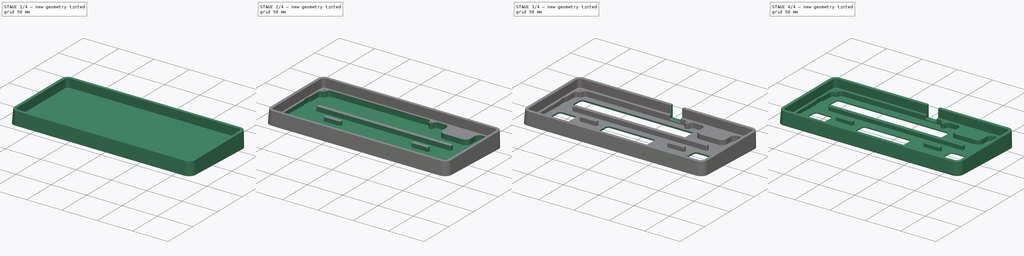
[diagram: build sequence overview — one tinted view per stage of 4, left to right]
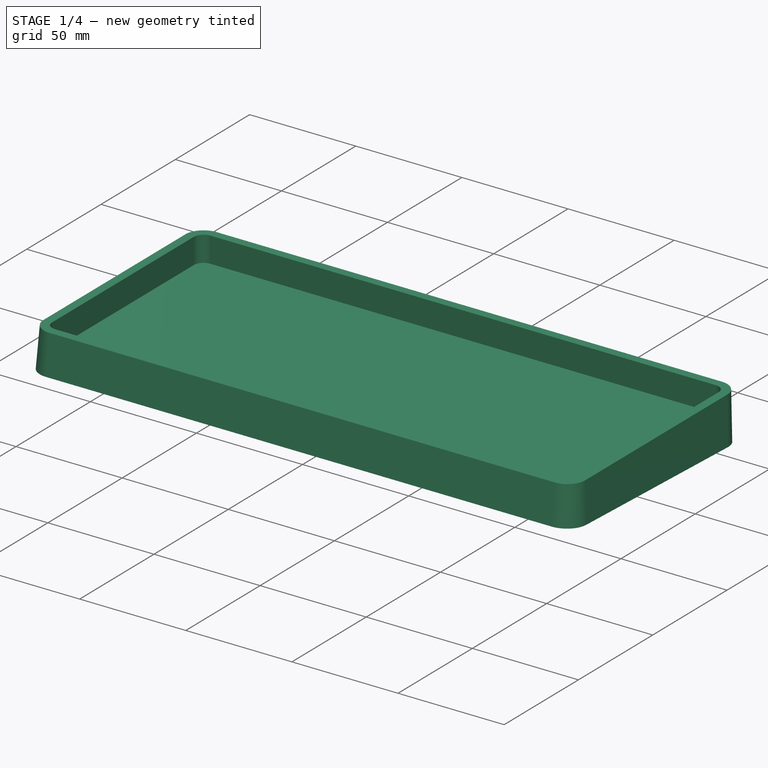
[diagram: stage 1 of 4 — iso view after this stage's code; geometry added in this stage tinted green]
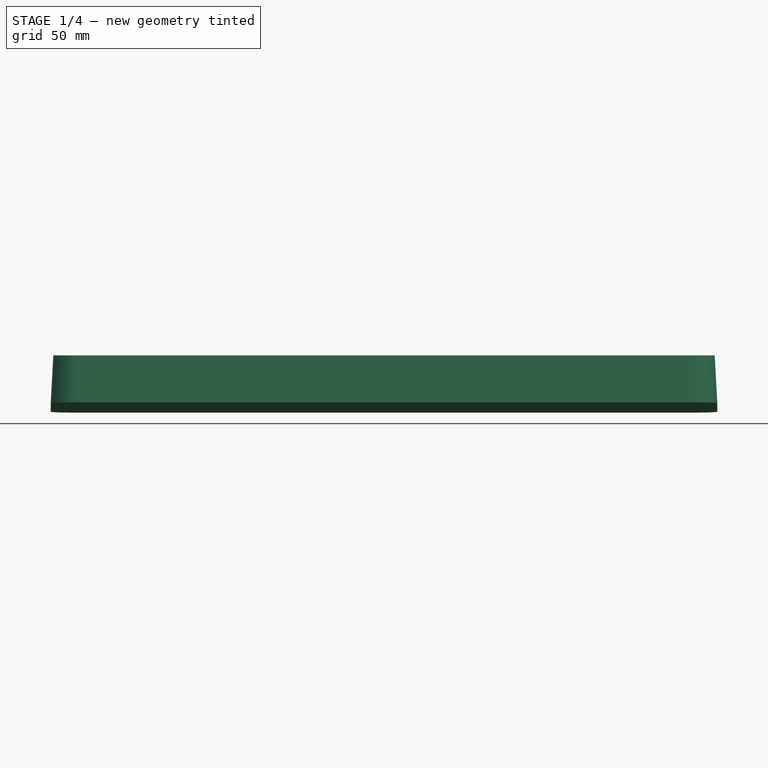
[diagram: stage 1 of 4 — front view after this stage's code; geometry added in this stage tinted green]
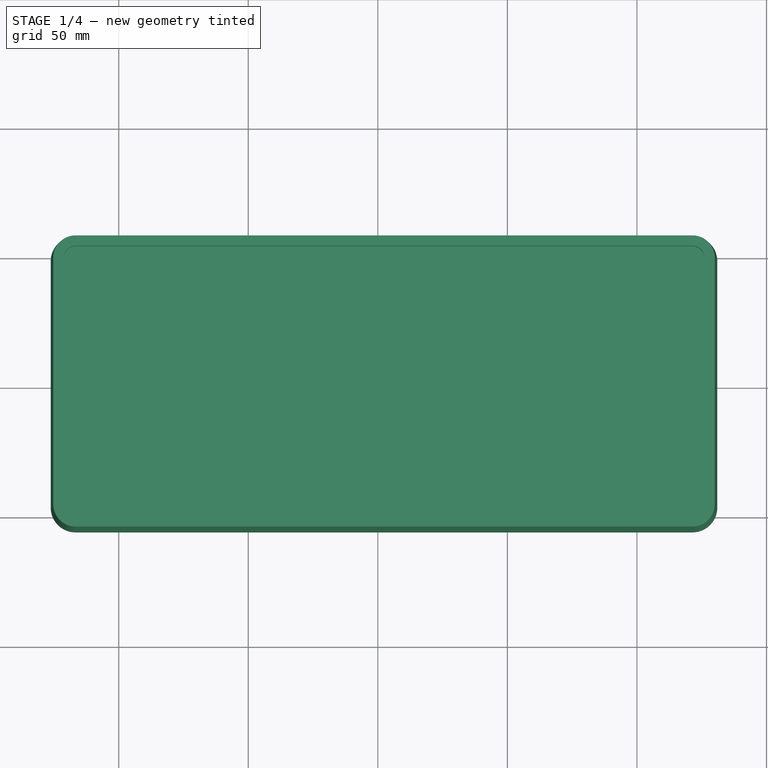
[diagram: stage 1 of 4 — top view after this stage's code; geometry added in this stage tinted green]
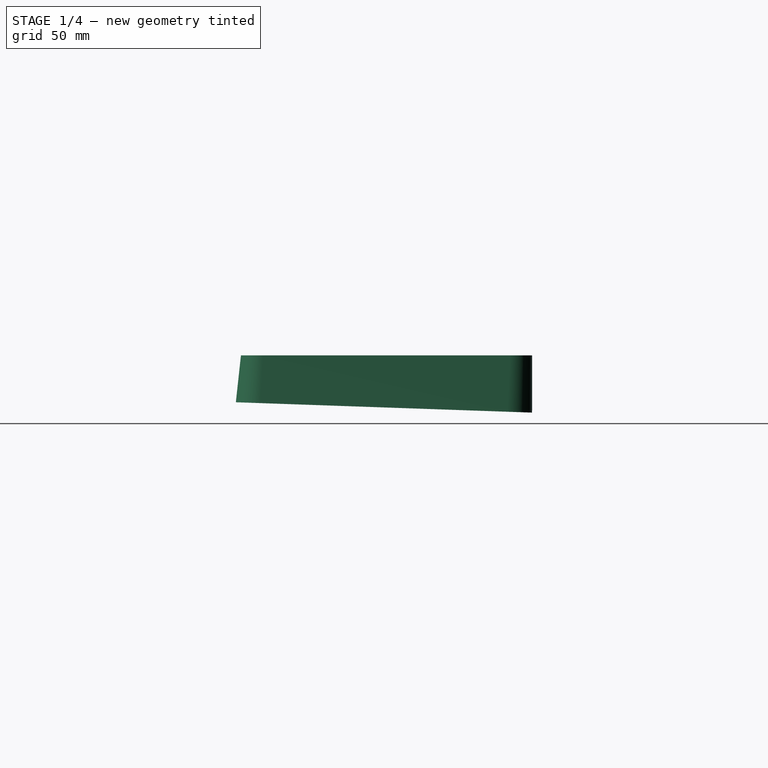
[diagram: stage 1 of 4 — right view after this stage's code; geometry added in this stage tinted green]
FCSTD DOCUMENT  (FreeCAD 0.20R)
Label: case
License: All rights reserved
LicenseURL: http://en.wikipedia.org/wiki/All_rights_reserved
objects: Sketcher::SketchObject×7, PartDesign::Pocket×4, PartDesign::Fillet×3, PartDesign::AdditiveLoft×1, PartDesign::Hole×1, PartDesign::Chamfer×1, PartDesign::Body×1
note: 28 computed .brp shape members not serialized (recipe doc carries the construction recipe); baked Part::Feature solids carry a one-line shape summary decoded from their .brp

FEATURE [Sketcher::SketchObject] Sketch002
  FullyConstrained = false
  MapMode = 5
  Placement = pos=(0,0.0685385,1.96269) rot=(-1,0,0;0.034907rad)
  sketch-geometry (40):
    g0: ArcOfCircle CenterX=57.3812 CenterY=-26.065 CenterZ=0 NormalX=0 NormalY=0 NormalZ=1 AngleXU=0 Radius=4 StartAngle=1.5708 EndAngle=3.14159
    g1: LineSegment StartX=57.3812 StartY=-22.065 StartZ=0 EndX=79.66 EndY=-22.065 EndZ=0
    g2: LineSegment StartX=53.3812 StartY=-26.065 StartZ=0 EndX=53.3812 EndY=-32.8156 EndZ=0
    g3: ArcOfCircle CenterX=57.3812 CenterY=-32.8156 CenterZ=0 NormalX=0 NormalY=0 NormalZ=1 AngleXU=0 Radius=4 StartAngle=3.14159 EndAngle=4.71239
    g4: LineSegment StartX=57.3812 StartY=-36.8156 StartZ=0 EndX=109.016 EndY=-36.8156 EndZ=0
    g5: ArcOfCircle CenterX=109.016 CenterY=-32.8156 CenterZ=0 NormalX=0 NormalY=0 NormalZ=1 AngleXU=0 Radius=4 StartAngle=4.71239 EndAngle=6.28318
    g6: LineSegment StartX=113.016 StartY=-32.8156 StartZ=0 EndX=113.016 EndY=-7.015 EndZ=0
    g7: ArcOfCircle CenterX=109.016 CenterY=-7.015 CenterZ=0 NormalX=0 NormalY=0 NormalZ=1 AngleXU=0 Radius=4 StartAngle=6.28318 EndAngle=7.85398
    g8: LineSegment StartX=109.016 StartY=-3.015 StartZ=0 EndX=87.66 EndY=-3.015 EndZ=0
    g9: ArcOfCircle CenterX=87.66 CenterY=-7.015 CenterZ=0 NormalX=0 NormalY=0 NormalZ=1 AngleXU=0 Radius=4 StartAngle=1.5708 EndAngle=3.14159
    g10: LineSegment StartX=83.66 StartY=-18.065 StartZ=0 EndX=83.66 EndY=-7.015 EndZ=0
    g11: ArcOfCircle CenterX=79.66 CenterY=-18.065 CenterZ=0 NormalX=0 NormalY=0 NormalZ=1 AngleXU=0 Radius=4 StartAngle=4.71239 EndAngle=6.28319
    g12: ArcOfCircle CenterX=-104.253 CenterY=-32.8156 CenterZ=0 NormalX=0 NormalY=0 NormalZ=1 AngleXU=0 Radius=4 StartAngle=3.14159 EndAngle=4.71239
    g13: LineSegment StartX=-108.253 StartY=-7.015 StartZ=0 EndX=-108.253 EndY=-32.8156 EndZ=0
    g14: LineSegment StartX=-104.253 StartY=-36.8156 StartZ=0 EndX=-66.9062 EndY=-36.8156 EndZ=0
    g15: ArcOfCircle CenterX=-66.9062 CenterY=-32.8156 CenterZ=0 NormalX=0 NormalY=0 NormalZ=1 AngleXU=0 Radius=4 StartAngle=4.71239 EndAngle=6.28319
    g16: LineSegment StartX=-62.9062 StartY=-26.065 StartZ=0 EndX=-62.9062 EndY=-32.8156 EndZ=0
    g17: ArcOfCircle CenterX=-66.9062 CenterY=-26.065 CenterZ=0 NormalX=0 NormalY=0 NormalZ=1 AngleXU=0 Radius=4 StartAngle=0 EndAngle=1.5708
    g18: LineSegment StartX=-66.9062 StartY=-22.065 StartZ=0 EndX=-79.66 EndY=-22.065 EndZ=0
    g19: ArcOfCircle CenterX=-79.66 CenterY=-18.065 CenterZ=0 NormalX=0 NormalY=0 NormalZ=1 AngleXU=0 Radius=4 StartAngle=3.14159 EndAngle=4.71239
    g20: LineSegment StartX=-83.66 StartY=-18.065 StartZ=0 EndX=-83.66 EndY=-7.015 EndZ=0
    g21: ArcOfCircle CenterX=-87.66 CenterY=-7.015 CenterZ=0 NormalX=0 NormalY=0 NormalZ=1 AngleXU=0 Radius=4 StartAngle=0 EndAngle=1.5708
    g22: LineSegment StartX=-87.66 StartY=-3.015 StartZ=0 EndX=-104.253 EndY=-3.015 EndZ=0
    g23: ArcOfCircle CenterX=-104.253 CenterY=-7.015 CenterZ=0 NormalX=0 NormalY=0 NormalZ=1 AngleXU=0 Radius=4 StartAngle=1.5708 EndAngle=3.14159
    g24: ArcOfCircle CenterX=-36.165 CenterY=-33.8156 CenterZ=0 NormalX=0 NormalY=0 NormalZ=1 AngleXU=0 Radius=4 StartAngle=3.14159 EndAngle=4.71239
    g25: LineSegment StartX=-40.165 StartY=-7.015 StartZ=0 EndX=-40.165 EndY=-33.8156 EndZ=0
    g26: LineSegment StartX=-36.165 StartY=-37.8156 StartZ=0 EndX=23.5812 EndY=-37.8156 EndZ=0
    g27: ArcOfCircle CenterX=23.5812 CenterY=-33.8156 CenterZ=0 NormalX=0 NormalY=0 NormalZ=1 AngleXU=0 Radius=4 StartAngle=4.71239 EndAngle=6.28319
    g28: LineSegment StartX=27.5812 StartY=-7.015 StartZ=0 EndX=27.5812 EndY=-33.8156 EndZ=0
    g29: ArcOfCircle CenterX=23.5812 CenterY=-7.015 CenterZ=0 NormalX=0 NormalY=0 NormalZ=1 AngleXU=0 Radius=4 StartAngle=0 EndAngle=1.5708
    g30: LineSegment StartX=23.5812 StartY=-3.015 StartZ=0 EndX=-36.165 EndY=-3.015 EndZ=0
    g31: ArcOfCircle CenterX=-36.165 CenterY=-7.015 CenterZ=0 NormalX=0 NormalY=0 NormalZ=1 AngleXU=0 Radius=4 StartAngle=1.5708 EndAngle=3.14159
    g32: ArcOfCircle CenterX=-104.253 CenterY=26.065 CenterZ=0 NormalX=0 NormalY=0 NormalZ=1 AngleXU=0 Radius=4 StartAngle=3.14159 EndAngle=4.71239
    g33: LineSegment StartX=-108.253 StartY=37.5781 StartZ=0 EndX=-108.253 EndY=26.065 EndZ=0
    g34: LineSegment StartX=-104.253 StartY=22.065 StartZ=0 EndX=46 EndY=22.065 EndZ=0
    g35: ArcOfCircle CenterX=-104.253 CenterY=37.5781 CenterZ=0 NormalX=0 NormalY=0 NormalZ=1 AngleXU=0 Radius=4 StartAngle=1.5708 EndAngle=3.14159
    g36: LineSegment StartX=-104.253 StartY=41.5781 StartZ=0 EndX=46 EndY=41.5781 EndZ=0
    g37: ArcOfCircle CenterX=46 CenterY=26.065 CenterZ=0 NormalX=0 NormalY=0 NormalZ=1 AngleXU=0 Radius=4 StartAngle=4.71239 EndAngle=6.28319
    g38: LineSegment StartX=50 StartY=26.065 StartZ=0 EndX=50 EndY=37.5781 EndZ=0
    g39: ArcOfCircle CenterX=46 CenterY=37.5781 CenterZ=0 NormalX=0 NormalY=0 NormalZ=1 AngleXU=0 Radius=4 StartAngle=0 EndAngle=1.5708
FEATURE [Sketcher::SketchObject] Sketch003
  FullyConstrained = false
  Placement = pos=(0,-1,0) rot=(-1,0,0;0.034907rad)
  Support = -> [XY_Plane]
  sketch-geometry (8):
    g0: ArcOfCircle CenterX=121.444 CenterY=-45.2437 CenterZ=0 NormalX=0 NormalY=0 NormalZ=1 AngleXU=0 Radius=9.57192 StartAngle=4.7124 EndAngle=6.28317
    g1: LineSegment StartX=-116.681 StartY=-54.8156 StartZ=0 EndX=121.444 EndY=-54.8156 EndZ=0
    g2: ArcOfCircle CenterX=-116.681 CenterY=-45.2437 CenterZ=0 NormalX=0 NormalY=0 NormalZ=1 AngleXU=0 Radius=9.57192 StartAngle=3.14161 EndAngle=4.71239
    g3: LineSegment StartX=-126.253 StartY=50.0062 StartZ=0 EndX=-126.253 EndY=-45.2439 EndZ=0
    g4: ArcOfCircle CenterX=-116.681 CenterY=50.0062 CenterZ=0 NormalX=0 NormalY=0 NormalZ=1 AngleXU=0 Radius=9.57187 StartAngle=1.5708 EndAngle=3.14159
    g5: LineSegment StartX=121.444 StartY=59.5782 StartZ=0 EndX=-116.681 EndY=59.5781 EndZ=0
    g6: LineSegment StartX=131.016 StartY=-45.2438 StartZ=0 EndX=131.016 EndY=50.0062 EndZ=0
    g7: ArcOfCircle CenterX=121.444 CenterY=50.0062 CenterZ=0 NormalX=0 NormalY=0 NormalZ=1 AngleXU=0 Radius=9.572 StartAngle=-9.74776e-11 EndAngle=1.5708
  constraints (8):
    c: Coincident(g4,g5)
    c: Coincident(g2,g3)
    c: Coincident(g3,g4)
    c: Coincident(g1,g2)
    c: Coincident(g0,g1)
    c: Coincident(g5,g7)
    c: Coincident(g0,g6)
    c: Coincident(g6,g7)
FEATURE [Sketcher::SketchObject] Sketch004
  FullyConstrained = false
  Placement = pos=(0,0,20) rot=(0,0,1;0rad)
  Support = -> [XY_Plane]
  sketch-geometry (8):
    g0: ArcOfCircle CenterX=121.444 CenterY=50.0062 CenterZ=0 NormalX=0 NormalY=0 NormalZ=1 AngleXU=0 Radius=8.57192 StartAngle=1.3998e-05 EndAngle=1.57078
    g1: LineSegment StartX=130.016 StartY=-45.2437 StartZ=0 EndX=130.016 EndY=50.0063 EndZ=0
    g2: ArcOfCircle CenterX=121.444 CenterY=-45.2437 CenterZ=0 NormalX=0 NormalY=0 NormalZ=1 AngleXU=0 Radius=8.57192 StartAngle=4.7124 EndAngle=6.28319
    g3: LineSegment StartX=-116.681 StartY=-53.8156 StartZ=0 EndX=121.444 EndY=-53.8156 EndZ=0
    g4: ArcOfCircle CenterX=-116.681 CenterY=-45.2437 CenterZ=0 NormalX=0 NormalY=0 NormalZ=1 AngleXU=0 Radius=8.57192 StartAngle=3.14161 EndAngle=4.71239
    g5: LineSegment StartX=-125.253 StartY=50.0062 StartZ=0 EndX=-125.253 EndY=-45.2438 EndZ=0
    g6: ArcOfCircle CenterX=-116.681 CenterY=50.0062 CenterZ=0 NormalX=0 NormalY=0 NormalZ=1 AngleXU=0 Radius=8.57187 StartAngle=1.5708 EndAngle=3.14159
    g7: LineSegment StartX=121.444 StartY=58.5781 StartZ=0 EndX=-116.681 EndY=58.5781 EndZ=0
  constraints (8):
    c: Coincident(g6,g7)
    c: Coincident(g4,g5)
    c: Coincident(g5,g6)
    c: Coincident(g3,g4)
    c: Coincident(g2,g3)
    c: Coincident(g0,g7)
    c: Coincident(g1,g2)
    c: Coincident(g0,g1)
FEATURE [PartDesign::AdditiveLoft] AdditiveLoft
  Closed = true
  Profile = -> Sketch004
  Ruled = true
  Sections = -> [Sketch003]
FEATURE [Sketcher::SketchObject] Sketch001
  AttachmentOffset = pos=(0,0,0) rot=(0,0,1;3.14159rad)
  FullyConstrained = false
  MapMode = 5
  Placement = pos=(0,0,20) rot=(0,0,1;3.14159rad)
  Support = -> [AdditiveLoft]
  sketch-geometry (4):
    g0: LineSegment StartX=-9.04875 StartY=-65.5613 StartZ=0 EndX=-24.2888 EndY=-65.5613 EndZ=0
    g1: LineSegment StartX=-9.04875 StartY=-45.5613 StartZ=0 EndX=-9.04875 EndY=-65.5613 EndZ=0
    g2: LineSegment StartX=-24.2888 StartY=-45.5613 StartZ=0 EndX=-24.2888 EndY=-65.5613 EndZ=0
    g3: LineSegment StartX=-9.04875 StartY=-45.5613 StartZ=0 EndX=-24.2888 EndY=-45.5613 EndZ=0
  constraints (4):
    c: Coincident(g0,g2)
    c: Coincident(g2,g3)
    c: Coincident(g0,g1)
    c: Coincident(g1,g3)
FEATURE [Sketcher::SketchObject] Sketch005
  FullyConstrained = false
  MapMode = 5
  Placement = pos=(0,0,20) rot=(0,0,1;0rad)
  Support = -> [AdditiveLoft]
  sketch-geometry (8):
    g0: ArcOfCircle CenterX=-116.681 CenterY=50.0062 CenterZ=0 NormalX=0 NormalY=0 NormalZ=1 AngleXU=0 Radius=4.57187 StartAngle=1.5708 EndAngle=3.14159
    g1: LineSegment StartX=-121.253 StartY=50.0062 StartZ=0 EndX=-121.253 EndY=-45.2438 EndZ=0
    g2: ArcOfCircle CenterX=-116.681 CenterY=-45.2437 CenterZ=0 NormalX=0 NormalY=0 NormalZ=1 AngleXU=0 Radius=4.57192 StartAngle=3.14161 EndAngle=4.71238
    g3: LineSegment StartX=-116.681 StartY=-49.8156 StartZ=0 EndX=121.444 EndY=-49.8156 EndZ=0
    g4: ArcOfCircle CenterX=121.444 CenterY=-45.2437 CenterZ=0 NormalX=0 NormalY=0 NormalZ=1 AngleXU=0 Radius=4.57192 StartAngle=4.71239 EndAngle=6.28317
    g5: LineSegment StartX=126.016 StartY=-45.2438 StartZ=0 EndX=126.016 EndY=50.0063 EndZ=0
    g6: ArcOfCircle CenterX=121.444 CenterY=50.0062 CenterZ=0 NormalX=0 NormalY=0 NormalZ=1 AngleXU=0 Radius=4.57192 StartAngle=1.3998e-05 EndAngle=1.57078
    g7: LineSegment StartX=121.444 StartY=54.5781 StartZ=0 EndX=-116.681 EndY=54.5781 EndZ=0
  constraints (8):
    c: Coincident(g1,g2)
    c: Coincident(g0,g1)
    c: Coincident(g2,g3)
    c: Coincident(g0,g7)
    c: Coincident(g3,g4)
    c: Coincident(g6,g7)
    c: Coincident(g4,g5)
    c: Coincident(g5,g6)
FEATURE [PartDesign::Pocket] Pocket
  BaseFeature = -> AdditiveLoft
  Direction = (0,0,-1)
  Length = 12
  Length2 = 5
  Profile = -> Sketch005
  ReferenceAxis = -> Sketch005 [N_Axis]
  Type = 0
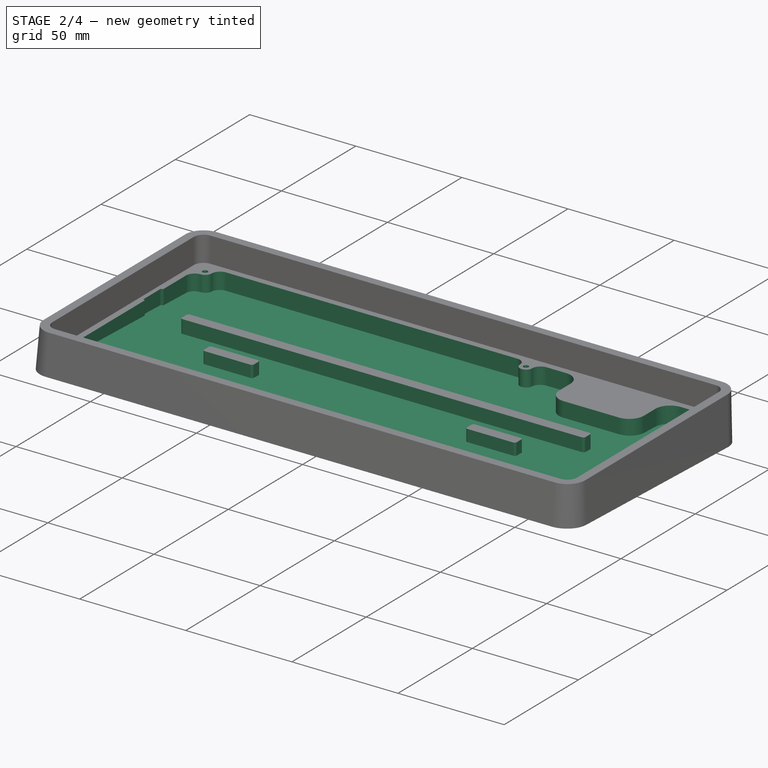
[diagram: stage 2 of 4 — iso view after this stage's code; geometry added in this stage tinted green]
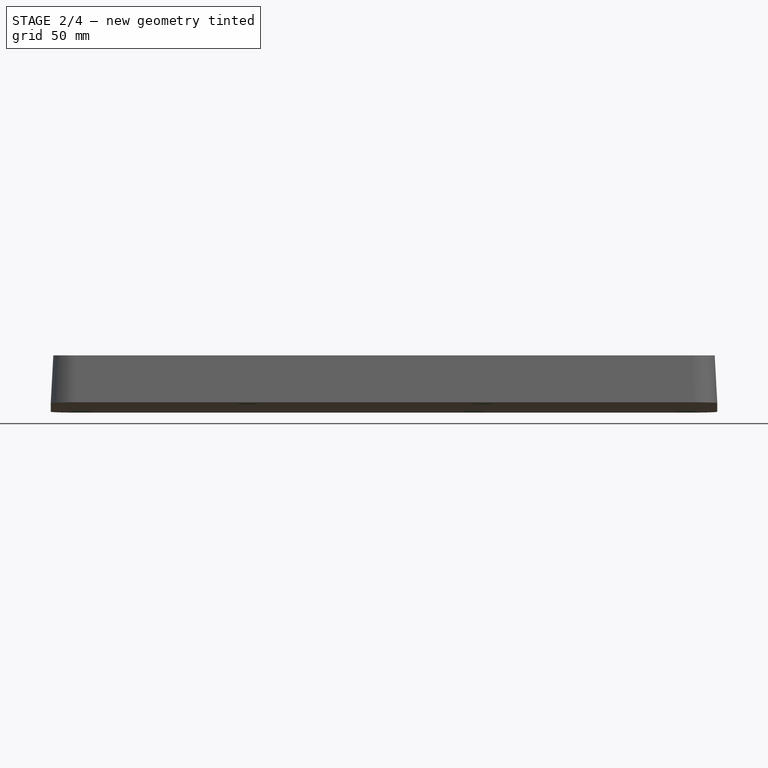
[diagram: stage 2 of 4 — front view after this stage's code; geometry added in this stage tinted green]
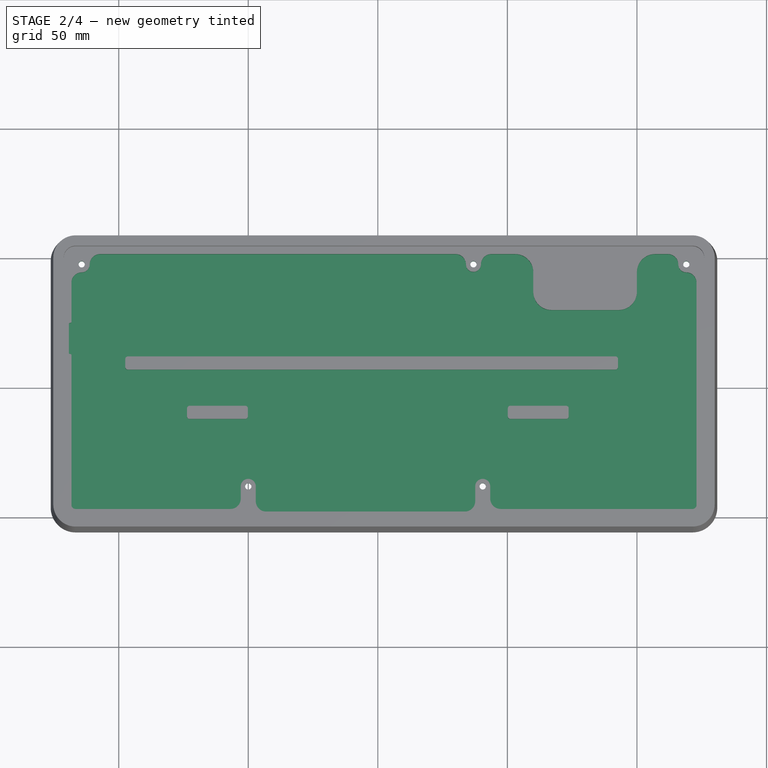
[diagram: stage 2 of 4 — top view after this stage's code; geometry added in this stage tinted green]
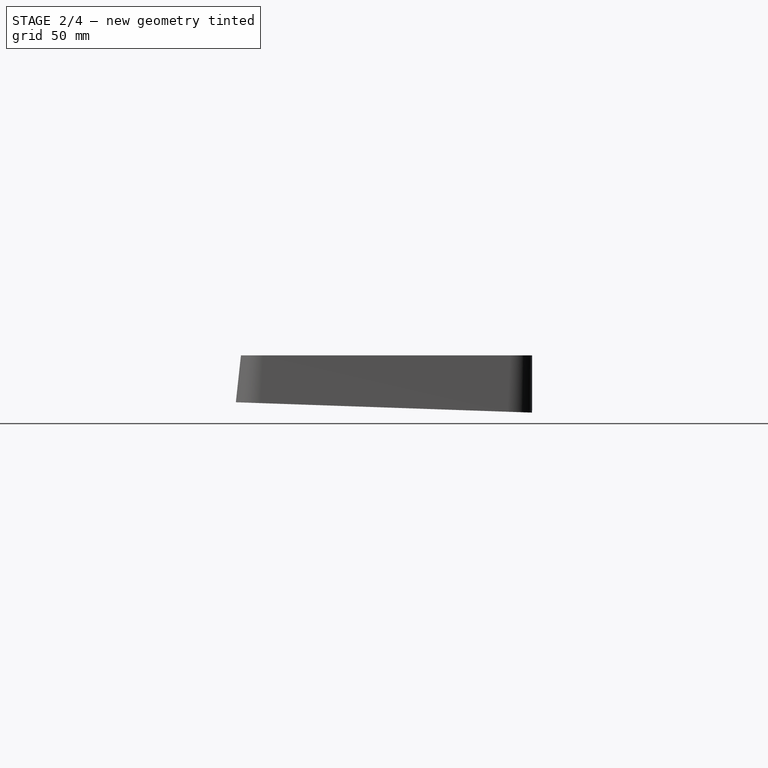
[diagram: stage 2 of 4 — right view after this stage's code; geometry added in this stage tinted green]
FEATURE [Sketcher::SketchObject] Sketch006
  FullyConstrained = false
  MapMode = 5
  Placement = pos=(0,0,8) rot=(0,0,1;0rad)
  Support = -> [Pocket]
  sketch-geometry (5):
    g0: Circle CenterX=36.9094 CenterY=47.625 CenterZ=0 NormalX=0 NormalY=0 NormalZ=-1 AngleXU=0 Radius=1.1
    g1: Circle CenterX=119.062 CenterY=47.625 CenterZ=0 NormalX=0 NormalY=0 NormalZ=-1 AngleXU=0 Radius=1.1
    g2: Circle CenterX=40.4812 CenterY=-38.1 CenterZ=0 NormalX=0 NormalY=0 NormalZ=-1 AngleXU=0 Radius=1.1
    g3: Circle CenterX=-50.0062 CenterY=-38.1 CenterZ=0 NormalX=0 NormalY=0 NormalZ=-1 AngleXU=0 Radius=1.1
    g4: Circle CenterX=-114.3 CenterY=47.625 CenterZ=0 NormalX=0 NormalY=0 NormalZ=-1 AngleXU=0 Radius=1.1
FEATURE [Sketcher::SketchObject] Sketch007
  FullyConstrained = false
  MapMode = 5
  Placement = pos=(0,0,8) rot=(0,0,1;0rad)
  Support = -> [Pocket]
  sketch-geometry (68):
    g0: ArcOfCircle CenterX=-116.681 CenterY=-45.2437 CenterZ=0 NormalX=0 NormalY=0 NormalZ=1 AngleXU=0 Radius=1.57192 StartAngle=3.14161 EndAngle=4.71238
    g1: ArcOfCircle CenterX=121.444 CenterY=-45.2437 CenterZ=0 NormalX=0 NormalY=0 NormalZ=1 AngleXU=0 Radius=1.57192 StartAngle=4.7124 EndAngle=6.28317
    g2: ArcOfCircle CenterX=119.016 CenterY=40.5251 CenterZ=0 NormalX=0 NormalY=0 NormalZ=1 AngleXU=0 Radius=4 StartAngle=0 EndAngle=1.56432
    g3: ArcOfCircle CenterX=111.962 CenterY=47.5781 CenterZ=0 NormalX=0 NormalY=0 NormalZ=1 AngleXU=0 Radius=4 StartAngle=0.00660568 EndAngle=1.5708
    g4: ArcOfCircle CenterX=119.062 CenterY=47.625 CenterZ=0 NormalX=0 NormalY=0 NormalZ=1 AngleXU=0 Radius=3.1 StartAngle=3.1482 EndAngle=4.70591
    g5: ArcOfCircle CenterX=-107.2 CenterY=47.5781 CenterZ=0 NormalX=0 NormalY=0 NormalZ=1 AngleXU=0 Radius=3.99993 StartAngle=1.5708 EndAngle=3.13498
    g6: ArcOfCircle CenterX=-114.253 CenterY=40.5252 CenterZ=0 NormalX=0 NormalY=0 NormalZ=1 AngleXU=0 Radius=3.99993 StartAngle=1.57742 EndAngle=3.14159
    g7: ArcOfCircle CenterX=-114.3 CenterY=47.625 CenterZ=0 NormalX=0 NormalY=0 NormalZ=1 AngleXU=0 Radius=3.10007 StartAngle=4.71901 EndAngle=6.27658
    g8: LineSegment StartX=123.016 StartY=-45.2437 StartZ=0 EndX=123.016 EndY=40.5251 EndZ=0
    g9: ArcOfCircle CenterX=-50.0062 CenterY=-38.1 CenterZ=0 NormalX=0 NormalY=0 NormalZ=1 AngleXU=0 Radius=2.9 StartAngle=0 EndAngle=3.14159
    g10: ArcOfCircle CenterX=40.4812 CenterY=-38.1 CenterZ=0 NormalX=0 NormalY=0 NormalZ=1 AngleXU=0 Radius=2.9 StartAngle=6.28319 EndAngle=9.42478
    g11: LineSegment StartX=43.3812 StartY=-38.1 StartZ=0 EndX=43.3812 EndY=-42.8156 EndZ=0
    g12: LineSegment StartX=47.3812 StartY=-46.8156 StartZ=0 EndX=121.444 EndY=-46.8156 EndZ=0
    g13: ArcOfCircle CenterX=47.3812 CenterY=-42.8156 CenterZ=0 NormalX=0 NormalY=0 NormalZ=1 AngleXU=0 Radius=4 StartAngle=3.14159 EndAngle=4.71239
    g14: LineSegment StartX=-52.9062 StartY=-38.1 StartZ=0 EndX=-52.9062 EndY=-42.8156 EndZ=0
    g15: LineSegment StartX=-116.681 StartY=-46.8156 StartZ=0 EndX=-56.9062 EndY=-46.8156 EndZ=0
    g16: ArcOfCircle CenterX=-56.9062 CenterY=-42.8156 CenterZ=0 NormalX=0 NormalY=0 NormalZ=1 AngleXU=0 Radius=4 StartAngle=4.71239 EndAngle=6.28319
    g17: ArcOfCircle CenterX=36.9117 CenterY=47.625 CenterZ=0 NormalX=0 NormalY=0 NormalZ=1 AngleXU=0 Radius=2.89848 StartAngle=3.15776 EndAngle=6.2606
    g18: ArcOfCircle CenterX=43.8094 CenterY=47.578 CenterZ=0 NormalX=0 NormalY=0 NormalZ=1 AngleXU=0 Radius=4.00004 StartAngle=1.5708 EndAngle=3.14622
    g19: LineSegment StartX=-107.2 StartY=51.578 StartZ=0 EndX=30.0095 EndY=51.579 EndZ=0
    g20: ArcOfCircle CenterX=30.0119 CenterY=47.5773 CenterZ=0 NormalX=0 NormalY=0 NormalZ=1 AngleXU=0 Radius=4.00171 StartAngle=0.000220734 EndAngle=1.57137
    g21: LineSegment StartX=37.5812 StartY=-38.1 StartZ=0 EndX=37.5812 EndY=-43.8156 EndZ=0
    g22: ArcOfCircle CenterX=33.5812 CenterY=-43.8156 CenterZ=0 NormalX=0 NormalY=0 NormalZ=1 AngleXU=0 Radius=4 StartAngle=4.71239 EndAngle=6.28319
    g23: LineSegment StartX=-47.1062 StartY=-38.1 StartZ=0 EndX=-47.1062 EndY=-43.8156 EndZ=0
    g24: LineSegment StartX=-43.1062 StartY=-47.8156 StartZ=0 EndX=33.5812 EndY=-47.8156 EndZ=0
    g25: ArcOfCircle CenterX=-43.1062 CenterY=-43.8156 CenterZ=0 NormalX=0 NormalY=0 NormalZ=1 AngleXU=0 Radius=4 StartAngle=3.14159 EndAngle=4.71239
    g26: LineSegment StartX=-118.253 StartY=40.5252 StartZ=0 EndX=-118.253 EndY=25.4 EndZ=0
    g27: ArcOfCircle CenterX=-118.653 CenterY=25.4 CenterZ=0 NormalX=0 NormalY=0 NormalZ=1 AngleXU=0 Radius=0.4 StartAngle=4.71239 EndAngle=6.28319
    g28: LineSegment StartX=-118.853 StartY=25 StartZ=0 EndX=-118.653 EndY=25 EndZ=0
    g29: ArcOfCircle CenterX=-118.853 CenterY=24.6 CenterZ=0 NormalX=0 NormalY=0 NormalZ=1 AngleXU=0 Radius=0.4 StartAngle=1.5708 EndAngle=3.14159
    g30: LineSegment StartX=-119.253 StartY=24.6 StartZ=0 EndX=-119.253 EndY=13.4 EndZ=0
    g31: ArcOfCircle CenterX=-118.853 CenterY=13.4 CenterZ=0 NormalX=0 NormalY=0 NormalZ=1 AngleXU=0 Radius=0.4 StartAngle=3.14159 EndAngle=4.71239
    g32: LineSegment StartX=-118.853 StartY=13 StartZ=0 EndX=-118.653 EndY=13 EndZ=0
    g33: LineSegment StartX=-118.253 StartY=12.6 StartZ=0 EndX=-118.253 EndY=-45.2437 EndZ=0
    g34: ArcOfCircle CenterX=-118.653 CenterY=12.6 CenterZ=0 NormalX=0 NormalY=0 NormalZ=1 AngleXU=0 Radius=0.4 StartAngle=9.32742e-07 EndAngle=1.5708
    g35: LineSegment StartX=-96.4725 StartY=12.065 StartZ=0 EndX=91.71 EndY=12.065 EndZ=0
    g36: ArcOfCircle CenterX=91.71 CenterY=11.065 CenterZ=0 NormalX=0 NormalY=0 NormalZ=1 AngleXU=-3.14159 Radius=1 StartAngle=3.14159 EndAngle=4.71239
    g37: LineSegment StartX=92.71 StartY=11.065 StartZ=0 EndX=92.71 EndY=7.985 EndZ=0
    g38: ArcOfCircle CenterX=91.71 CenterY=7.985 CenterZ=0 NormalX=0 NormalY=0 NormalZ=1 AngleXU=-3.14159 Radius=1 StartAngle=1.5708 EndAngle=3.14159
    g39: LineSegment StartX=91.71 StartY=6.985 StartZ=0 EndX=-96.4725 EndY=6.985 EndZ=0
    g40: ArcOfCircle CenterX=-96.4725 CenterY=7.985 CenterZ=0 NormalX=0 NormalY=0 NormalZ=1 AngleXU=-3.14159 Radius=1 StartAngle=0 EndAngle=1.5708
    g41: LineSegment StartX=-97.4725 StartY=7.985 StartZ=0 EndX=-97.4725 EndY=11.065 EndZ=0
    g42: ArcOfCircle CenterX=-96.4725 CenterY=11.065 CenterZ=0 NormalX=0 NormalY=0 NormalZ=1 AngleXU=-3.14159 Radius=1 StartAngle=4.71239 EndAngle=6.28319
    g43: ArcOfCircle CenterX=67 CenterY=37 CenterZ=0 NormalX=0 NormalY=0 NormalZ=1 AngleXU=0 Radius=7 StartAngle=3.14159 EndAngle=4.71239
    g44: LineSegment StartX=67 StartY=30 StartZ=0 EndX=93 EndY=30 EndZ=0
    g45: ArcOfCircle CenterX=93 CenterY=37 CenterZ=0 NormalX=0 NormalY=0 NormalZ=1 AngleXU=0 Radius=7 StartAngle=4.71239 EndAngle=6.28319
    g46: LineSegment StartX=43.8094 StartY=51.5781 StartZ=0 EndX=53 EndY=51.5781 EndZ=0
    g47: LineSegment StartX=60 StartY=37 StartZ=0 EndX=60 EndY=44.5781 EndZ=0
    g48: ArcOfCircle CenterX=53 CenterY=44.5781 CenterZ=0 NormalX=0 NormalY=0 NormalZ=1 AngleXU=0 Radius=7 StartAngle=0 EndAngle=1.5708
    g49: LineSegment StartX=107 StartY=51.5781 StartZ=0 EndX=111.962 EndY=51.5781 EndZ=0
    g50: LineSegment StartX=100 StartY=37 StartZ=0 EndX=100 EndY=44.5781 EndZ=0
    g51: ArcOfCircle CenterX=107 CenterY=44.5781 CenterZ=0 NormalX=0 NormalY=0 NormalZ=1 AngleXU=0 Radius=7 StartAngle=1.5708 EndAngle=3.14159
    g52: LineSegment StartX=72.66 StartY=-6.985 StartZ=0 EndX=51.165 EndY=-6.985 EndZ=0
    g53: ArcOfCircle CenterX=51.165 CenterY=-7.985 CenterZ=0 NormalX=0 NormalY=0 NormalZ=1 AngleXU=0 Radius=1 StartAngle=1.5708 EndAngle=3.14159
    g54: LineSegment StartX=50.165 StartY=-7.985 StartZ=0 EndX=50.165 EndY=-11.065 EndZ=0
    g55: ArcOfCircle CenterX=51.165 CenterY=-11.065 CenterZ=0 NormalX=0 NormalY=0 NormalZ=1 AngleXU=0 Radius=1 StartAngle=3.14159 EndAngle=4.71239
    g56: LineSegment StartX=51.165 StartY=-12.065 StartZ=0 EndX=72.66 EndY=-12.065 EndZ=0
    g57: ArcOfCircle CenterX=72.66 CenterY=-11.065 CenterZ=0 NormalX=0 NormalY=0 NormalZ=1 AngleXU=0 Radius=1 StartAngle=4.71239 EndAngle=6.28319
    g58: LineSegment StartX=73.66 StartY=-11.065 StartZ=0 EndX=73.66 EndY=-7.985 EndZ=0
    g59: ArcOfCircle CenterX=72.66 CenterY=-7.985 CenterZ=0 NormalX=0 NormalY=0 NormalZ=1 AngleXU=0 Radius=1 StartAngle=0 EndAngle=1.5708
    g60: LineSegment StartX=-72.66 StartY=-6.985 StartZ=0 EndX=-51.165 EndY=-6.985 EndZ=0
    g61: ArcOfCircle CenterX=-51.165 CenterY=-7.985 CenterZ=0 NormalX=0 NormalY=0 NormalZ=1 AngleXU=-3.14159 Radius=1 StartAngle=3.14159 EndAngle=4.71239
    g62: LineSegment StartX=-50.165 StartY=-7.985 StartZ=0 EndX=-50.165 EndY=-11.065 EndZ=0
    g63: ArcOfCircle CenterX=-51.165 CenterY=-11.065 CenterZ=0 NormalX=0 NormalY=0 NormalZ=1 AngleXU=-3.14159 Radius=1 StartAngle=1.5708 EndAngle=3.14159
    g64: LineSegment StartX=-51.165 StartY=-12.065 StartZ=0 EndX=-72.66 EndY=-12.065 EndZ=0
    g65: ArcOfCircle CenterX=-72.66 CenterY=-11.065 CenterZ=0 NormalX=0 NormalY=0 NormalZ=1 AngleXU=-3.14159 Radius=1 StartAngle=0 EndAngle=1.5708
    g66: LineSegment StartX=-73.66 StartY=-11.065 StartZ=0 EndX=-73.66 EndY=-7.985 EndZ=0
    g67: ArcOfCircle CenterX=-72.66 CenterY=-7.985 CenterZ=0 NormalX=0 NormalY=0 NormalZ=1 AngleXU=-3.14159 Radius=1 StartAngle=4.71239 EndAngle=6.28319
  constraints (68):
    c: Coincident(g30,g31)
    c: Coincident(g29,g30)
    c: Coincident(g31,g32)
    c: Coincident(g28,g29)
    c: Coincident(g32,g34)
    c: Coincident(g27,g28)
    c: Coincident(g0,g33)
    c: Coincident(g33,g34)
    c: Coincident(g26,g27)
    c: Coincident(g6,g26)
    c: Coincident(g0,g15)
    c: Coincident(g5,g7)
    c: Coincident(g5,g19)
    c: Coincident(g40,g41)
    c: Coincident(g41,g42)
    c: Coincident(g39,g40)
    c: Coincident(g35,g42)
    c: Coincident(g65,g66)
    c: Coincident(g66,g67)
    c: Coincident(g64,g65)
    c: Coincident(g60,g67)
    c: Coincident(g15,g16)
    c: Coincident(g14,g16)
    c: Coincident(g9,g14)
    c: Coincident(g63,g64)
    c: Coincident(g60,g61)
    c: Coincident(g62,g63)
    c: Coincident(g61,g62)
    c: Coincident(g23,g25)
    c: Coincident(g9,g23)
    c: Coincident(g24,g25)
    c: Coincident(g19,g20)
    c: Coincident(g22,g24)
    c: Coincident(g21,g22)
    c: Coincident(g10,g21)
    c: Coincident(g11,g13)
    c: Coincident(g10,g11)
    c: Coincident(g18,g46)
    c: Coincident(g12,g13)
    c: Coincident(g54,g55)
    c: Coincident(g53,g54)
    c: Coincident(g55,g56)
    c: Coincident(g52,g53)
    c: Coincident(g46,g48)
    c: Coincident(g43,g47)
    c: Coincident(g47,g48)
    c: Coincident(g43,g44)
    c: Coincident(g56,g57)
    c: Coincident(g52,g59)
    c: Coincident(g57,g58)
    c: Coincident(g58,g59)
    c: Coincident(g38,g39)
    c: Coincident(g35,g36)
    c: Coincident(g37,g38)
    c: Coincident(g36,g37)
    c: Coincident(g44,g45)
    c: Coincident(g45,g50)
    c: Coincident(g50,g51)
    c: Coincident(g49,g51)
    c: Coincident(g3,g49)
    c: Coincident(g3,g4)
    c: Coincident(g2,g4)
    c: Coincident(g1,g12)
    c: Coincident(g1,g8)
    c: Coincident(g2,g8)
    c: Coincident(g6,g7)
    c: Coincident(g20,g17)
    c: Coincident(g17,g18)
FEATURE [PartDesign::Pocket] Pocket001
  BaseFeature = -> Pocket
  Direction = (0,0,-1)
  Length = 0
  Length2 = 5
  Offset = -2
  Profile = -> Sketch007
  ReferenceAxis = -> Sketch007 [N_Axis]
  Type = 3
  UpToFace = -> Pocket [Face18]
FEATURE [PartDesign::Hole] Hole
  BaseFeature = -> Pocket001
  CustomThreadClearance = 0
  Depth = 25
  DepthType = 0
  Diameter = 2.42
  DrillForDepth = false
  DrillPoint = 1
  DrillPointAngle = 118
  HoleCutCountersinkAngle = 90
  HoleCutCustomValues = false
  HoleCutDepth = 0
  HoleCutDiameter = 6.1
  HoleCutType = 0
  ModelThread = false
  Profile = -> Sketch006
  Tapered = false
  TaperedAngle = 90
  ThreadClass = 0
  ThreadDepth = 25
  ThreadDepthType = 0
  ThreadDirection = 0
  ThreadFit = 0
  ThreadSize = 7
  ThreadType = 1
  Threaded = false
  UseCustomThreadClearance = false
FEATURE [PartDesign::Chamfer] Chamfer
  Angle = 45
  Base = -> Hole [Edge50,Edge51,Edge53,Edge52,Edge49]
  BaseFeature = -> Hole
  ChamferType = 0
  FlipDirection = false
  Size = 3
  Size2 = 1
  SupportTransform = false
  UseAllEdges = false
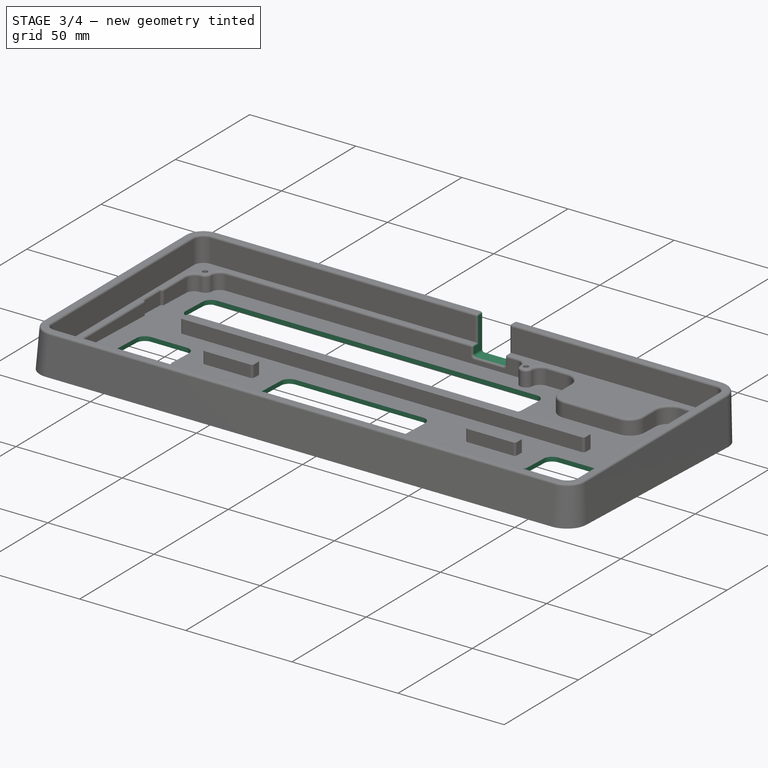
[diagram: stage 3 of 4 — iso view after this stage's code; geometry added in this stage tinted green]
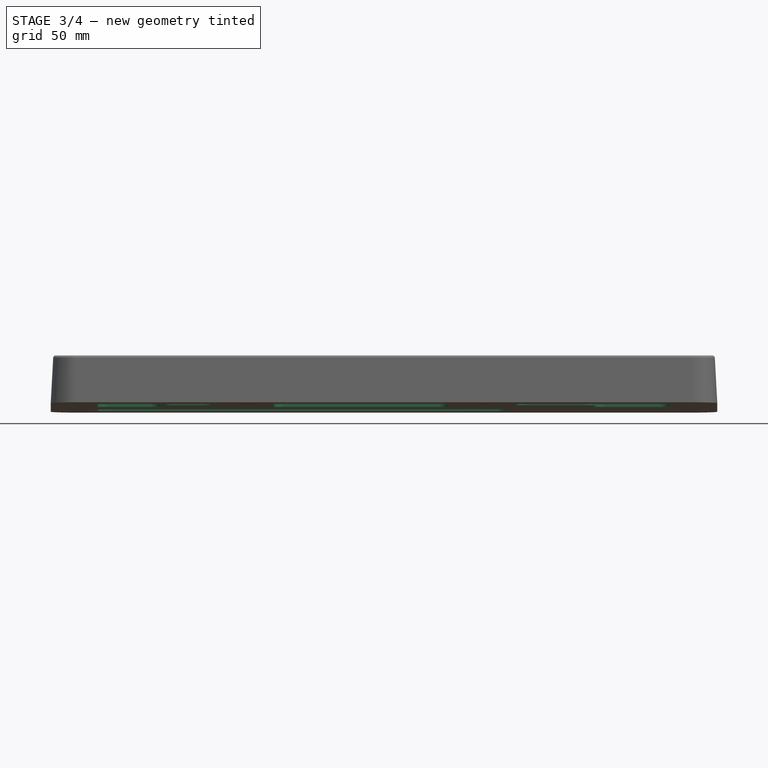
[diagram: stage 3 of 4 — front view after this stage's code; geometry added in this stage tinted green]
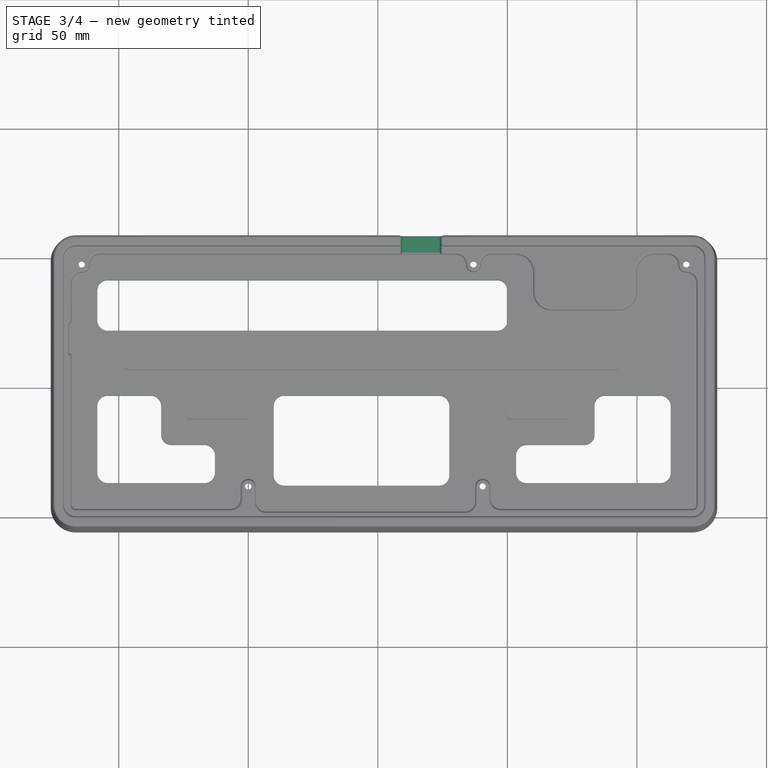
[diagram: stage 3 of 4 — top view after this stage's code; geometry added in this stage tinted green]
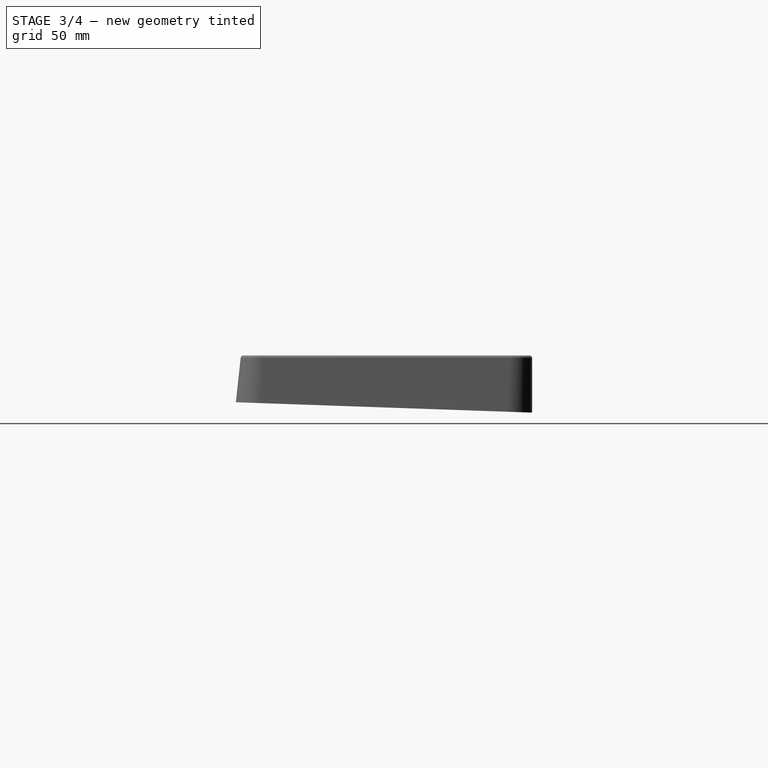
[diagram: stage 3 of 4 — right view after this stage's code; geometry added in this stage tinted green]
FEATURE [PartDesign::Pocket] Pocket002
  BaseFeature = -> Chamfer
  Direction = (0,0,-1)
  Length = 0
  Length2 = 5
  Offset = -3
  Profile = -> Sketch001
  ReferenceAxis = -> Sketch001 [N_Axis]
  Type = 3
  UpToFace = -> Chamfer [Face74]
FEATURE [PartDesign::Pocket] Pocket003
  BaseFeature = -> Pocket002
  Direction = (0,-0.0348995,-0.999391)
  Length = 5
  Length2 = 5
  Profile = -> Sketch002
  ReferenceAxis = -> Sketch002 [N_Axis]
  Type = 1
FEATURE [PartDesign::Fillet] Fillet
  Base = -> Pocket003 [Edge322,Face57,Face56,Face55,Face58]
  BaseFeature = -> Pocket003
  Radius = 1
  SupportTransform = false
  UseAllEdges = false
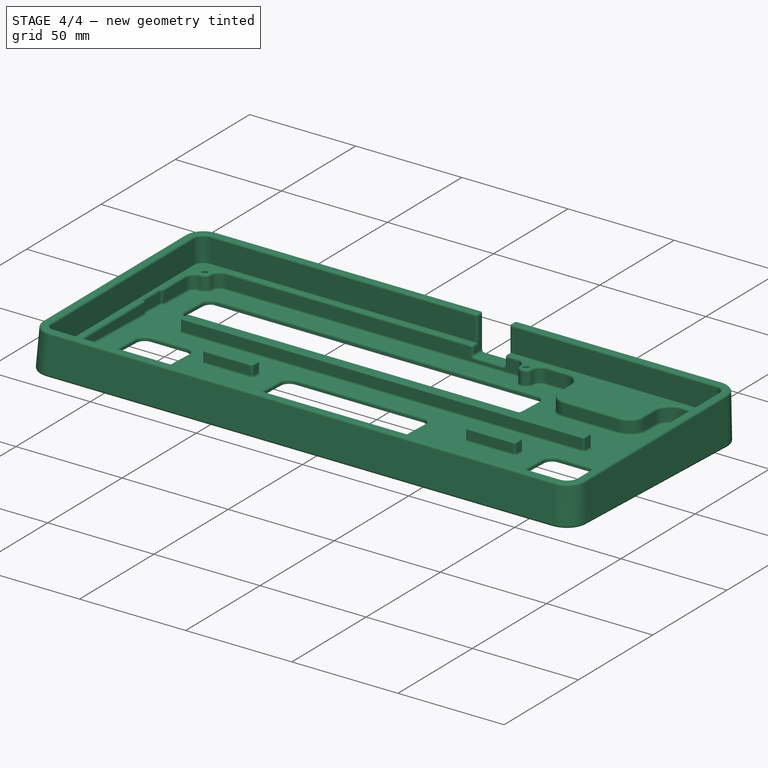
[diagram: stage 4 of 4 — iso view after this stage's code; geometry added in this stage tinted green]
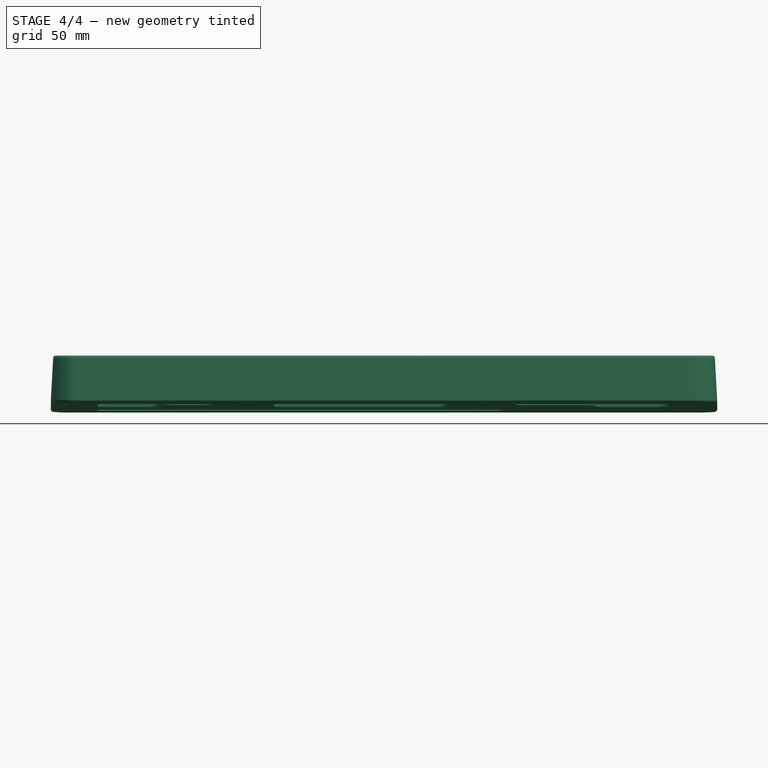
[diagram: stage 4 of 4 — front view after this stage's code; geometry added in this stage tinted green]
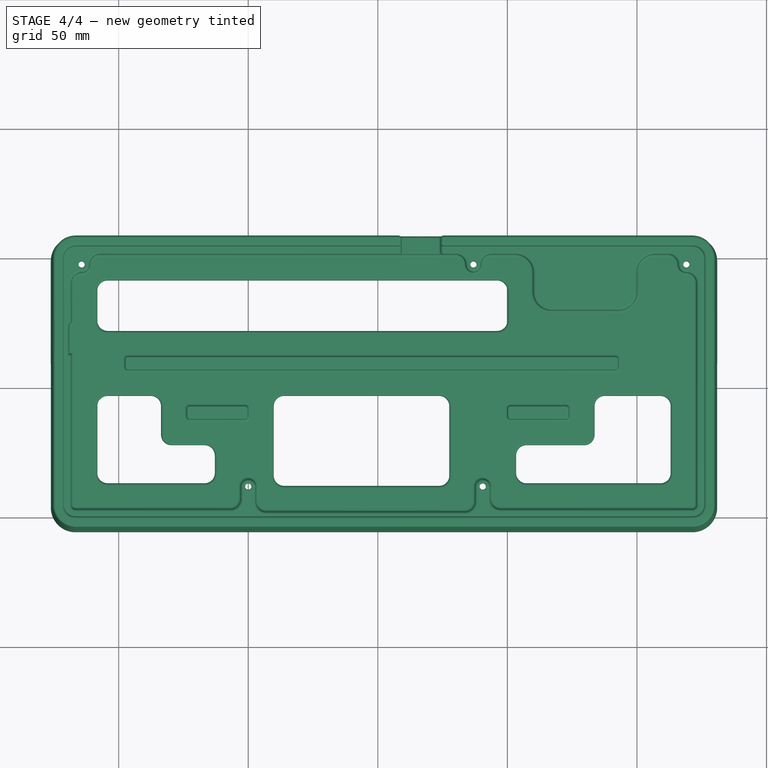
[diagram: stage 4 of 4 — top view after this stage's code; geometry added in this stage tinted green]
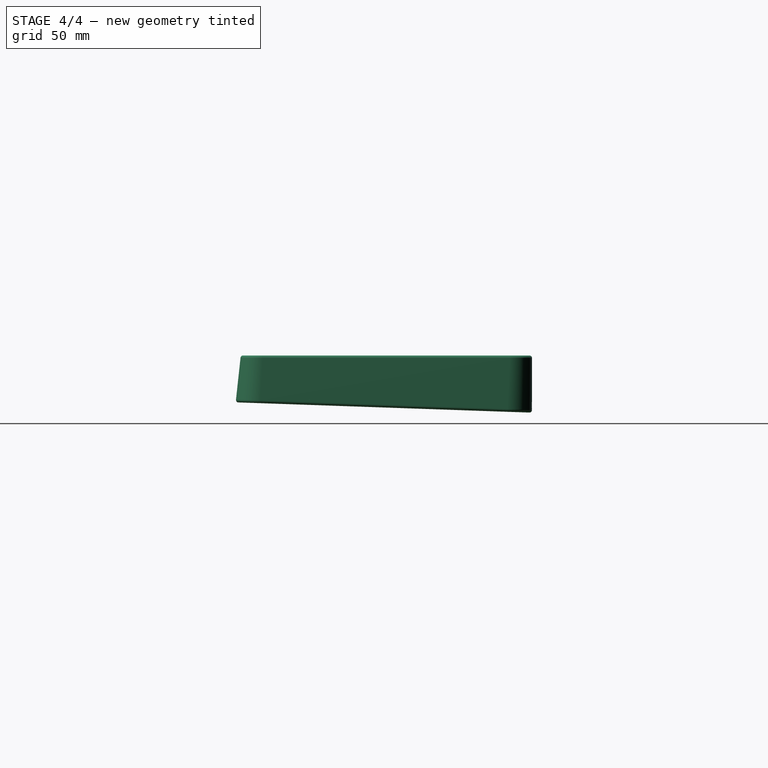
[diagram: stage 4 of 4 — right view after this stage's code; geometry added in this stage tinted green]
FEATURE [PartDesign::Fillet] Fillet001
  Base = -> Fillet [Edge305,Edge309,Edge307,Edge303,Edge301,Face232,Face230,Face231]
  BaseFeature = -> Fillet
  Radius = 0.4
  SupportTransform = false
  UseAllEdges = false
FEATURE [PartDesign::Fillet] Fillet002
  Base = -> Fillet001 [Face193,Edge84,Edge85,Edge115,Edge94,Edge7,Edge67]
  BaseFeature = -> Fillet001
  Radius = 1
  SupportTransform = false
  UseAllEdges = false
FEATURE [PartDesign::Body] Body
  Group = -> [Sketch001,Sketch002,Sketch003,Sketch004,Sketch005,Sketch006,Sketch007,AdditiveLoft,Pocket,Pocket001,Hole,Chamfer,Pocket002,Pocket003,Fillet,Fillet001,Fillet002]
  Origin = -> Origin
  Placement = pos=(0,0,0) rot=(1,0,0;0.034907rad)
  Tip = -> Fillet002
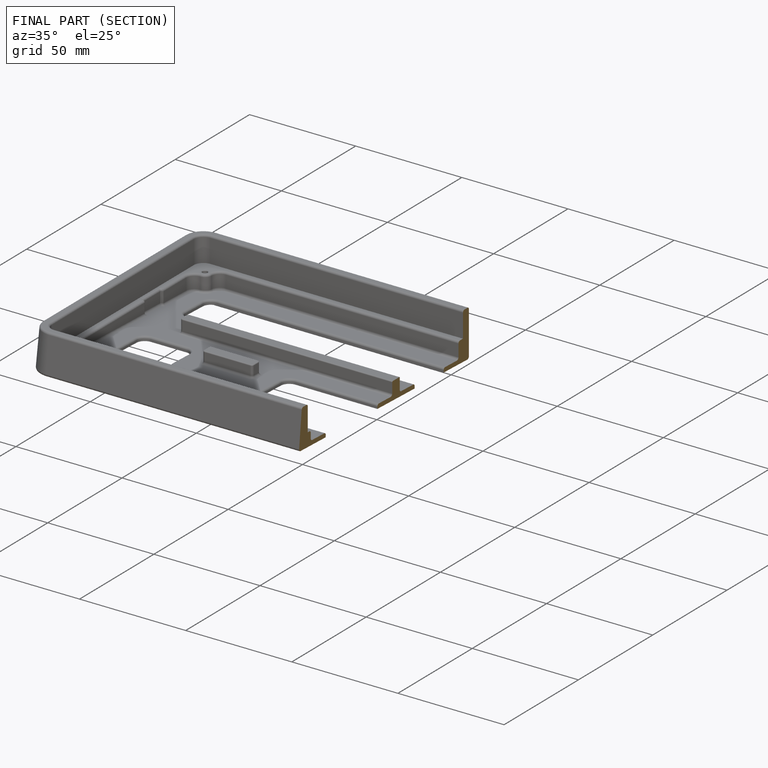
[diagram: finished part — half-section view (interior)]
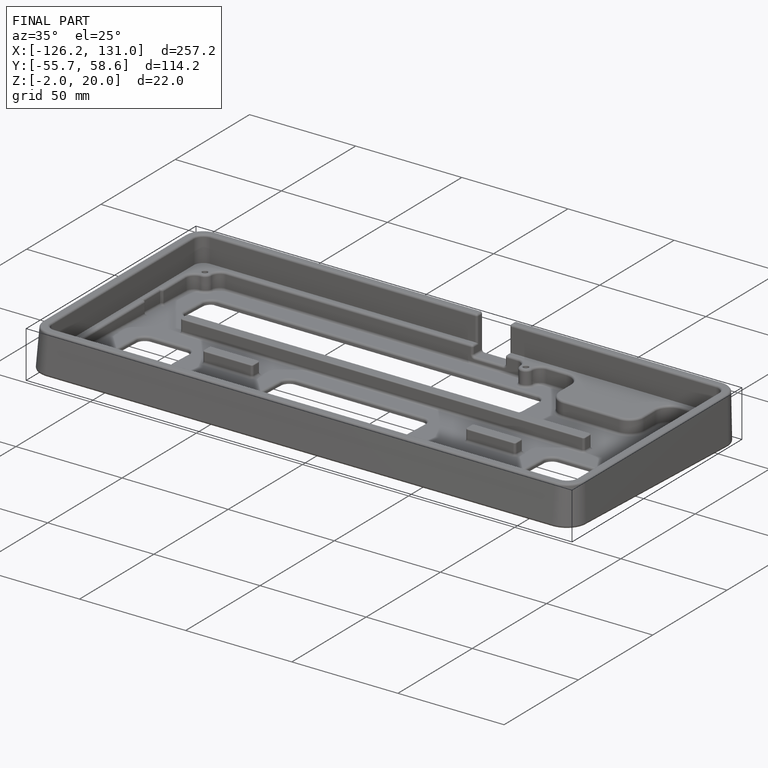
[diagram: finished part — iso view with bounding-box wireframe]
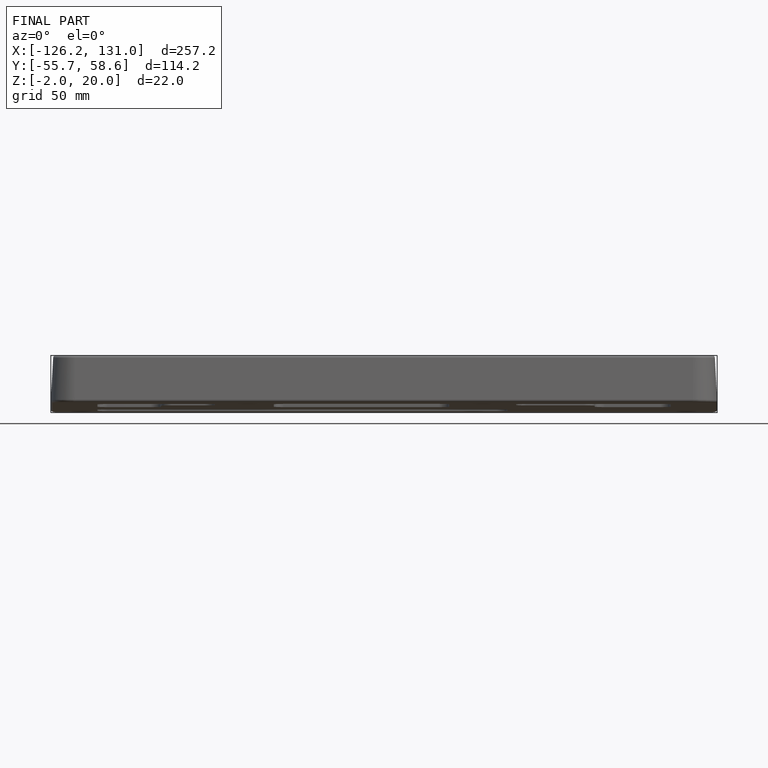
[diagram: finished part — front view with bounding-box wireframe]
